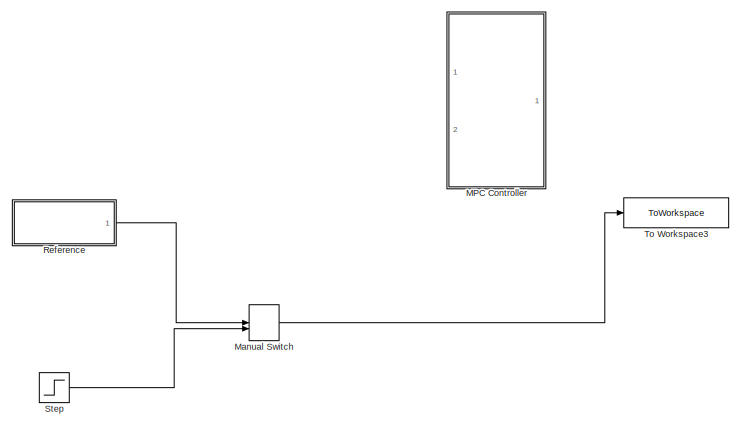
[diagram: root canvas - part 1/2, top left region]
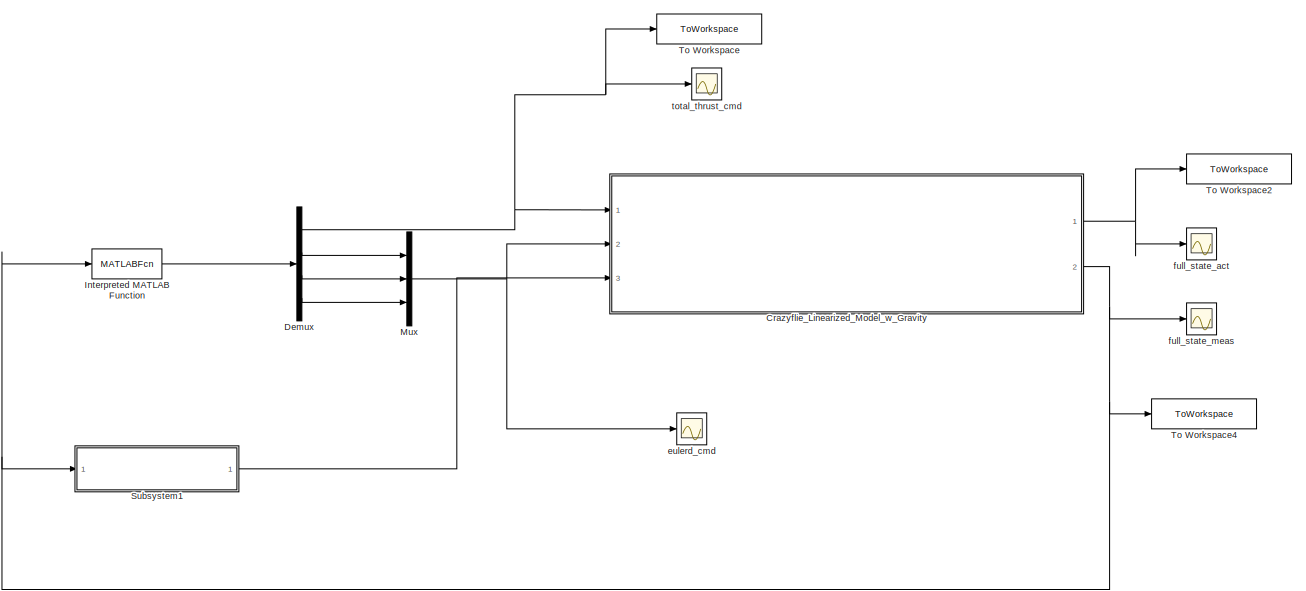
[diagram: root canvas - part 2/2, right side, full height]
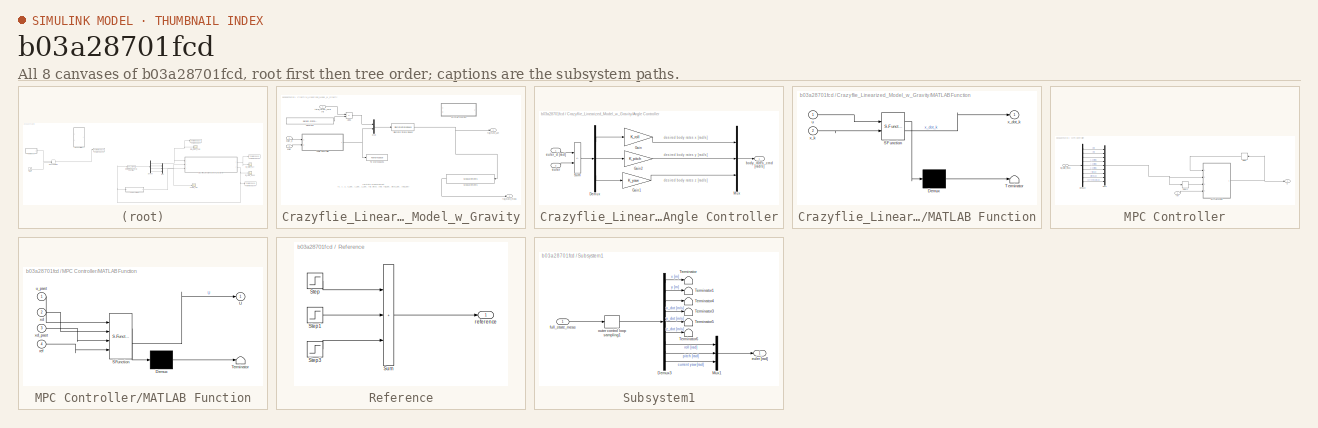
[diagram: thumbnail index - all 8 canvases of the model, root first then tree order]
MODEL slx_b03a28701fcd
KIND model
CONFIG AbsTol = auto
CONFIG EnableMultiTasking = off
CONFIG FixedStep = auto
CONFIG MaxStep = auto
CONFIG MinStep = auto
CONFIG RelTol = 1e-3
CONFIG SampleTimeConstraint = Unconstrained
CONFIG SolverName = VariableStepAuto
CONFIG StartTime = 0.0
CONFIG StopTime = sim_time
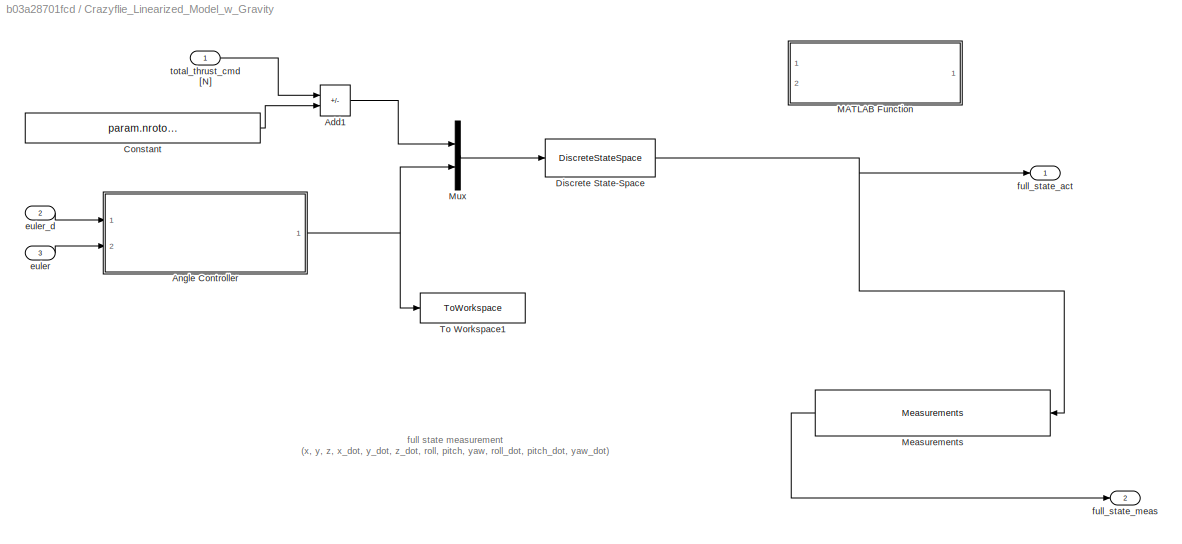
BLOCK [SubSystem] Crazyflie_Linearized_Model_w_Gravity
  AncestorBlock = Crazyflie_Library/Crazyflie_Linearized_Model_w_Gravity
  Ports = [3, 2]
  RequestExecContextInheritance = off
BLOCK [Sum] Crazyflie_Linearized_Model_w_Gravity/Add1
  IconShape = rectangular
  Inputs = +-
  Ports = [2, 1]
BLOCK [SubSystem] Crazyflie_Linearized_Model_w_Gravity/Angle Controller
  Ports = [2, 1]
  RequestExecContextInheritance = off
BLOCK [Demux] Crazyflie_Linearized_Model_w_Gravity/Angle Controller/Demux
  Outputs = 3
  Ports = [1, 3]
BLOCK [Gain] Crazyflie_Linearized_Model_w_Gravity/Angle Controller/Gain
  Gain = K_roll
  Multiplication = Matrix(K*u)
BLOCK [Gain] Crazyflie_Linearized_Model_w_Gravity/Angle Controller/Gain1
  Gain = K_yaw
  Multiplication = Matrix(K*u)
BLOCK [Gain] Crazyflie_Linearized_Model_w_Gravity/Angle Controller/Gain2
  Gain = K_pitch
  Multiplication = Matrix(K*u)
BLOCK [Mux] Crazyflie_Linearized_Model_w_Gravity/Angle Controller/Mux
  DisplayOption = bar
  Inputs = 3
  Ports = [3, 1]
BLOCK [Sum] Crazyflie_Linearized_Model_w_Gravity/Angle Controller/Sum
  IconShape = rectangular
  Inputs = +-
  Ports = [2, 1]
BLOCK [Outport] Crazyflie_Linearized_Model_w_Gravity/Angle Controller/body_rates_cmd [rad//s]
BLOCK [Inport] Crazyflie_Linearized_Model_w_Gravity/Angle Controller/euler
  Port = 2
BLOCK [Inport] Crazyflie_Linearized_Model_w_Gravity/Angle Controller/euler_d [rad]
BLOCK [Constant] Crazyflie_Linearized_Model_w_Gravity/Constant
  Value = param.nrotor_vehicle_mass_true * param.g
BLOCK [DiscreteStateSpace] Crazyflie_Linearized_Model_w_Gravity/Discrete State-Space
  A = param.Ad_MPC
  B = param.Bd_MPC
  C = param.Cd_MPC
  D = zeros(9,4)
  InitialCondition = param.nrotor_initial_condition(1:9)
  SampleTime = 0.04
BLOCK [SubSystem] Crazyflie_Linearized_Model_w_Gravity/MATLAB Function
  Commented = on
  ErrorFcn = Stateflow.Translate.translate
  PermitHierarchicalResolution = ExplicitOnly
  Ports = [2, 1]
  RequestExecContextInheritance = off
  SFBlockType = MATLAB Function
  TreatAsAtomicUnit = on
BLOCK [Demux] Crazyflie_Linearized_Model_w_Gravity/MATLAB Function/ Demux 
  Outputs = 1
  Ports = [1, 1]
BLOCK [S-Function] Crazyflie_Linearized_Model_w_Gravity/MATLAB Function/ SFunction 
  EnableBusSupport = on
  FunctionName = sf_sfun
  Parameters = Ad,Bd
  PortCounts = [2 2]
  Ports = [2, 2]
  SFcnIsStateOwnerBlock = off
  SFunctionDeploymentMode = off
  Tag = Stateflow S-Function 6
BLOCK [Terminator] Crazyflie_Linearized_Model_w_Gravity/MATLAB Function/ Terminator 
BLOCK [Inport] Crazyflie_Linearized_Model_w_Gravity/MATLAB Function/u
BLOCK [Outport] Crazyflie_Linearized_Model_w_Gravity/MATLAB Function/x_dot_k
BLOCK [Inport] Crazyflie_Linearized_Model_w_Gravity/MATLAB Function/x_k
  Port = 2
BLOCK [Reference] Crazyflie_Linearized_Model_w_Gravity/Measurements  REF=Crazyflie_Library/Crazyflie_Linearized_Model_w_Gravity/Measurements
  Ports = [1, 1]
  SourceBlock = Crazyflie_Library/Crazyflie_Linearized_Model_w_Gravity/Measurements
  SourceType = SubSystem
BLOCK [Mux] Crazyflie_Linearized_Model_w_Gravity/Mux
  DisplayOption = bar
  Inputs = 2
  Ports = [2, 1]
BLOCK [ToWorkspace] Crazyflie_Linearized_Model_w_Gravity/To Workspace1
  FixptAsFi = on
  MaxDataPoints = inf
  Ports = [1]
  SampleTime = param.sample_time_controller_outer
  VariableName = body_rates_cmd
BLOCK [Inport] Crazyflie_Linearized_Model_w_Gravity/euler
  Port = 3
BLOCK [Inport] Crazyflie_Linearized_Model_w_Gravity/euler_d
  Port = 2
BLOCK [Outport] Crazyflie_Linearized_Model_w_Gravity/full_state_act
  VectorParamsAs1DForOutWhenUnconnected = off
BLOCK [Outport] Crazyflie_Linearized_Model_w_Gravity/full_state_meas
  Port = 2
  VectorParamsAs1DForOutWhenUnconnected = off
BLOCK [Inport] Crazyflie_Linearized_Model_w_Gravity/total_thrust_cmd [N]
BLOCK [Demux] Demux
  Ports = [1, 4]
BLOCK [MATLABFcn] Interpreted MATLAB Function
  MATLABFcn = MPC_Optimizer(u)
  OutputDimensions = 4
  Ports = [1, 1]
BLOCK [SubSystem] MPC Controller
  Commented = on
  Ports = [2, 1]
  RequestExecContextInheritance = off
BLOCK [Delay] MPC Controller/Delay
  DelayLength = 1
  InitialCondition = zeros(4,1)
  InputPortMap = u0
  NameLocation = top
  Ports = [1, 1]
BLOCK [Delay] MPC Controller/Delay2
  DelayLength = 1
  InitialCondition = zeros(9,1)
  InputPortMap = u0
  Ports = [1, 1]
BLOCK [Demux] MPC Controller/Demux3
  Outputs = 9
  Ports = [1, 9]
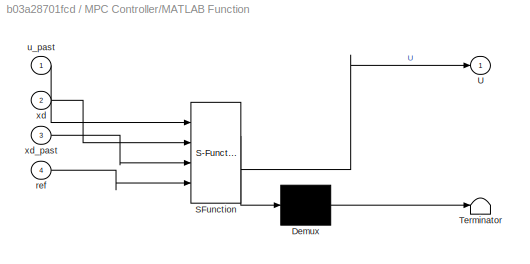
BLOCK [SubSystem] MPC Controller/MATLAB Function
  ErrorFcn = Stateflow.Translate.translate
  PermitHierarchicalResolution = ExplicitOnly
  Ports = [4, 1]
  RequestExecContextInheritance = off
  SFBlockType = MATLAB Function
  TreatAsAtomicUnit = on
BLOCK [Demux] MPC Controller/MATLAB Function/ Demux 
  Outputs = 1
  Ports = [1, 1]
BLOCK [S-Function] MPC Controller/MATLAB Function/ SFunction 
  EnableBusSupport = on
  FunctionName = sf_sfun
  Parameters = K_mpc,Ky_mpc,N_mpc,Yb_mpc,nu_mpc
  PortCounts = [4 2]
  Ports = [4, 2]
  SFcnIsStateOwnerBlock = off
  SFunctionDeploymentMode = off
  Tag = Stateflow S-Function 7
BLOCK [Terminator] MPC Controller/MATLAB Function/ Terminator 
BLOCK [Outport] MPC Controller/MATLAB Function/U
BLOCK [Inport] MPC Controller/MATLAB Function/ref
  Port = 4
BLOCK [Inport] MPC Controller/MATLAB Function/u_past
BLOCK [Inport] MPC Controller/MATLAB Function/xd
  Port = 2
BLOCK [Inport] MPC Controller/MATLAB Function/xd_past
  Port = 3
BLOCK [Mux] MPC Controller/Mux1
  DisplayOption = bar
  Inputs = 9
  Ports = [9, 1]
BLOCK [Outport] MPC Controller/U
BLOCK [Inport] MPC Controller/full_state_meas
  Port = 2
BLOCK [Inport] MPC Controller/ref
BLOCK [ManualSwitch] Manual Switch
  CurrentSetting = 0
BLOCK [Mux] Mux
  DisplayOption = bar
  Inputs = 3
  Ports = [3, 1]
BLOCK [SubSystem] Reference
  Ports = [0, 1]
  RequestExecContextInheritance = off
BLOCK [Step] Reference/Step
  After = [param.nrotor_final_condition(1:3); param.nrotor_final_condition(9)]
  Before = [param.nrotor_initial_condition(1:3); param.nrotor_initial_condition(9)]
  SampleTime = 0
  Time = start_time
BLOCK [Step] Reference/Step1
  After = [-1;-1;1;0]
  Before = [0;0;0;0]
  SampleTime = 0
  Time = start_time+wave_time
BLOCK [Step] Reference/Step3
  After = [1;1;-1;0]
  Before = [0;0;0;0]
  SampleTime = 0
  Time = start_time+wave_time*2
BLOCK [Sum] Reference/Sum
  IconShape = rectangular
  Inputs = +++
  Ports = [3, 1]
BLOCK [Outport] Reference/reference
BLOCK [Step] Step
  After = [param.nrotor_final_condition(1:3); param.nrotor_final_condition(9)]
  Before = [param.nrotor_initial_condition(1:3); param.nrotor_initial_condition(9)]
  SampleTime = 0
  Time = start_time
BLOCK [SubSystem] Subsystem1
  Ports = [1, 1]
  RequestExecContextInheritance = off
BLOCK [Demux] Subsystem1/Demux3
  Outputs = 9
  Ports = [1, 9]
BLOCK [Mux] Subsystem1/Mux1
  DisplayOption = bar
  Inputs = 3
  Ports = [3, 1]
BLOCK [Terminator] Subsystem1/Terminator
BLOCK [Terminator] Subsystem1/Terminator1
BLOCK [Terminator] Subsystem1/Terminator3
BLOCK [Terminator] Subsystem1/Terminator4
BLOCK [Terminator] Subsystem1/Terminator5
BLOCK [Terminator] Subsystem1/Terminator6
BLOCK [Outport] Subsystem1/euler [rad]
BLOCK [Inport] Subsystem1/full_state_meas
BLOCK [ZeroOrderHold] Subsystem1/outer control loop sampling1
  SampleTime = param.sample_time_controller_outer
BLOCK [ToWorkspace] To Workspace
  FixptAsFi = on
  MaxDataPoints = inf
  Ports = [1]
  SampleTime = param.sample_time_controller_outer
  VariableName = total_thrust_cmd
BLOCK [ToWorkspace] To Workspace2
  FixptAsFi = on
  MaxDataPoints = inf
  Ports = [1]
  SampleTime = param.sample_time_controller_outer
  VariableName = full_state_act
BLOCK [ToWorkspace] To Workspace3
  FixptAsFi = on
  MaxDataPoints = inf
  Ports = [1]
  SampleTime = param.sample_time_controller_outer
  VariableName = r_out
BLOCK [ToWorkspace] To Workspace4
  FixptAsFi = on
  MaxDataPoints = inf
  Ports = [1]
  SampleTime = param.sample_time_controller_outer
  VariableName = full_state_meas
BLOCK [Scope] eulerd_cmd
  Floating = off
  NumInputPorts = 1
  Ports = [1]
  ScopeSpecificationString = Simulink.scopes.TimeScopeBlockCfg('CurrentConfiguration', extmgr.ConfigurationSet(extmgr.Configuration('Core','General UI',true),extmgr.Configuration('Core','Source UI',true),extmgr.Configuration('Sources','WiredSimulink',true,'DataLoggingVariableName','ScopeData2'),extmgr.Configuration('Visuals','Time Domain',true,'SerializedDisplays',{struct('MinYLimReal','-1.07282','MaxYLimReal','1.58336','YLab...<+1643ch>
BLOCK [Scope] full_state_act
  Floating = off
  NumInputPorts = 1
  Ports = [1]
  ScopeSpecificationString = Simulink.scopes.TimeScopeBlockCfg('CurrentConfiguration', extmgr.ConfigurationSet(extmgr.Configuration('Core','General UI',true,'FigureColor',[0 0 0]),extmgr.Configuration('Core','Source UI',true),extmgr.Configuration('Sources','WiredSimulink',true,'DataLoggingVariableName','ScopeData1'),extmgr.Configuration('Visuals','Time Domain',true,'SerializedDisplays',{struct('MinYLimReal','-3.17508','MaxYLi...<+2180ch>
BLOCK [Scope] full_state_meas
  Floating = off
  NumInputPorts = 1
  Ports = [1]
  ScopeSpecificationString = Simulink.scopes.TimeScopeBlockCfg('CurrentConfiguration', extmgr.ConfigurationSet(extmgr.Configuration('Core','General UI',true),extmgr.Configuration('Core','Source UI',true),extmgr.Configuration('Sources','WiredSimulink',true,'DataLoggingVariableName','ScopeData2'),extmgr.Configuration('Visuals','Time Domain',true,'SerializedDisplays',{struct('MinYLimReal','-2.90626','MaxYLimReal','2.70609','YLab...<+2135ch>
BLOCK [Scope] total_thrust_cmd
  Floating = off
  NumInputPorts = 1
  Ports = [1]
  ScopeSpecificationString = Simulink.scopes.TimeScopeBlockCfg('CurrentConfiguration', extmgr.ConfigurationSet(extmgr.Configuration('Core','General UI',true),extmgr.Configuration('Core','Source UI',true),extmgr.Configuration('Sources','WiredSimulink',true,'DataLoggingVariableName','ScopeData1'),extmgr.Configuration('Visuals','Time Domain',true,'SerializedDisplays',{struct('MinYLimReal','-0.07985','MaxYLimReal','0.71863','YLab...<+1484ch>
ANNOTATION Crazyflie_Linearized_Model_w_Gravity: full state measurement (x, y, z, x_dot, y_dot, z_dot, roll, pitch, yaw, roll_dot, pitch_dot, yaw_dot)
ANNOTATION Crazyflie_Linearized_Model_w_Gravity/Angle Controller: desired body rates x [rad/s]
ANNOTATION Crazyflie_Linearized_Model_w_Gravity/Angle Controller: desired body rates y [rad/s]
ANNOTATION Crazyflie_Linearized_Model_w_Gravity/Angle Controller: desired body rates z [rad/s]
NET Crazyflie_Linearized_Model_w_Gravity:1 -> To Workspace2:1, full_state_act:1
NET Crazyflie_Linearized_Model_w_Gravity:2 -> Interpreted MATLAB Function:1, Subsystem1:1, To Workspace4:1, full_state_meas:1
NET Demux:1 -> Crazyflie_Linearized_Model_w_Gravity:1, To Workspace:1, total_thrust_cmd:1
LINE Demux:2 -> Mux:1
LINE Demux:3 -> Mux:2
LINE Demux:4 -> Mux:3
LINE Interpreted MATLAB Function:1 -> Demux:1
LINE MPC Controller/Delay2:1 -> MPC Controller/MATLAB Function:3
LINE MPC Controller/Delay:1 -> MPC Controller/MATLAB Function:1
LINE MPC Controller/Demux3:1 -> MPC Controller/Mux1:1
LINE MPC Controller/Demux3:2 -> MPC Controller/Mux1:2
LINE MPC Controller/Demux3:3 -> MPC Controller/Mux1:3
LINE MPC Controller/Demux3:4 -> MPC Controller/Mux1:4
LINE MPC Controller/Demux3:5 -> MPC Controller/Mux1:5
LINE MPC Controller/Demux3:6 -> MPC Controller/Mux1:6
LINE MPC Controller/Demux3:7 -> MPC Controller/Mux1:7
LINE MPC Controller/Demux3:8 -> MPC Controller/Mux1:8
LINE MPC Controller/Demux3:9 -> MPC Controller/Mux1:9
NET MPC Controller/MATLAB Function:1 -> MPC Controller/Delay:1, MPC Controller/U:1
NET MPC Controller/Mux1:1 -> MPC Controller/Delay2:1, MPC Controller/MATLAB Function:2
LINE MPC Controller/full_state_meas:1 -> MPC Controller/Demux3:1
LINE MPC Controller/ref:1 -> MPC Controller/MATLAB Function:4
LINE Manual Switch:1 -> To Workspace3:1
NET Mux:1 -> Crazyflie_Linearized_Model_w_Gravity:2, eulerd_cmd:1
LINE Reference/Step1:1 -> Reference/Sum:2
LINE Reference/Step3:1 -> Reference/Sum:3
LINE Reference/Step:1 -> Reference/Sum:1
LINE Reference/Sum:1 -> Reference/reference:1
LINE Reference:1 -> Manual Switch:1
LINE Step:1 -> Manual Switch:2
LINE Subsystem1/Demux3:1 -> Subsystem1/Terminator:1
LINE Subsystem1/Demux3:2 -> Subsystem1/Terminator1:1
LINE Subsystem1/Demux3:3 -> Subsystem1/Terminator4:1
LINE Subsystem1/Demux3:4 -> Subsystem1/Terminator3:1
LINE Subsystem1/Demux3:5 -> Subsystem1/Terminator5:1
LINE Subsystem1/Demux3:6 -> Subsystem1/Terminator6:1
LINE Subsystem1/Demux3:7 -> Subsystem1/Mux1:1
LINE Subsystem1/Demux3:8 -> Subsystem1/Mux1:2
LINE Subsystem1/Demux3:9 -> Subsystem1/Mux1:3
LINE Subsystem1/Mux1:1 -> Subsystem1/euler [rad]:1
LINE Subsystem1/full_state_meas:1 -> Subsystem1/outer control loop sampling1:1
LINE Subsystem1/outer control loop sampling1:1 -> Subsystem1/Demux3:1
LINE Subsystem1:1 -> Crazyflie_Linearized_Model_w_Gravity:3
note: NET lines group one-source signal fan-out (src -> all destinations, sorted); 1:1 wires keep LINE
CHART Crazyflie_Linearized_Model_w_Gravity/MATLAB Function states=1 transitions=1
  STATE_LABEL 'eML_blk_kernel()'
  STATE_LABEL 'SCRIPT:\nfunction x_dot_k = fcn(u,x_k, Ad, Bd)\n\nx_dot_k = zeros(9,1);\n\nx_dot_k = Ad*x_k + Bd*u;\n'
CHART MPC Controller/MATLAB Function states=1 transitions=1
  STATE_LABEL 'eML_blk_kernel()'
  STATE_LABEL 'SCRIPT:\nfunction U  = MPC_otimizer(u_past,xd,xd_past,ref,Ky_mpc,N_mpc, K_mpc, nu_mpc,Yb_mpc)\n\nU = zeros(4,1);\n% Yb_mpc2 = zeros(0,0);\nCd = eye(9);\n\n% for n = 0:N_mpc\n%     Yb_mpc2 =[Yb_mpc2;ref];\n% end\n\n\nDxdk = xd-xd_past;\nxk = [ Dxdk; Cd*xd];\n\n% compute unconstrained optimal sequence and MPC policy\ndU = reshape(- (K_mpc*xk - Ky_mpc*Yb_mpc) , nu_mpc, N_mpc);\nUopt = u_past + dU;\nU = Uopt(:,1);\n\n'
CHART  states=0 transitions=0
CHART  states=0 transitions=0
